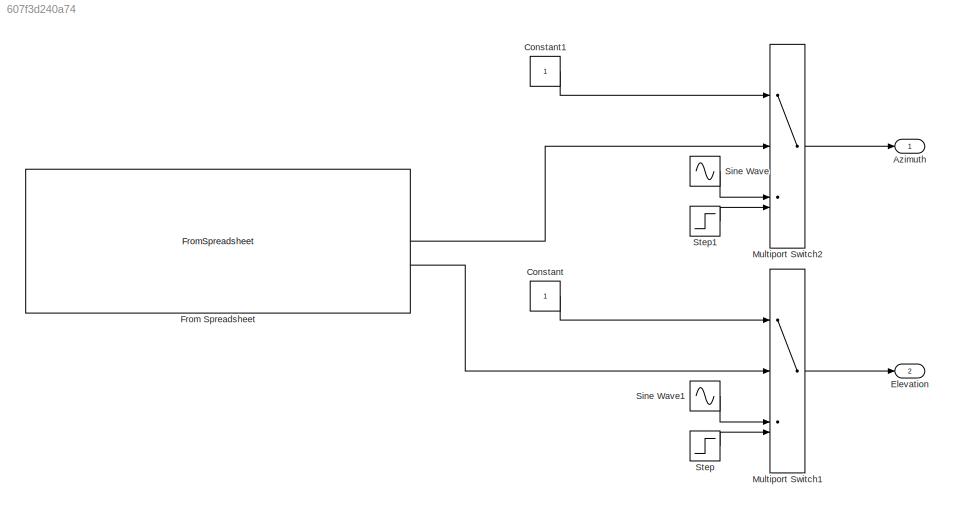
MODEL slx_607f3d240a74
KIND model
CONFIG AbsTol = auto
CONFIG EnableMultiTasking = off
CONFIG FixedStep = 0.001
CONFIG MaxStep = auto
CONFIG MinStep = auto
CONFIG RelTol = 1e-3
CONFIG SampleTimeConstraint = Unconstrained
CONFIG SolverName = ode1be
CONFIG StartTime = 0.0
CONFIG StopTime = 10.0
BLOCK [Outport] Azimuth
  NameLocation = right
BLOCK [Constant] Constant
BLOCK [Constant] Constant1
BLOCK [Outport] Elevation
  NameLocation = right
  Port = 2
BLOCK [FromSpreadsheet] From Spreadsheet
  FileName = .\data\DemoSatelliteData.xlsx
  SheetName = International_Space_Station
BLOCK [MultiPortSwitch] Multiport Switch1
  InputSameDT = off
  SaturateOnIntegerOverflow = off
BLOCK [MultiPortSwitch] Multiport Switch2
  InputSameDT = off
  SaturateOnIntegerOverflow = off
BLOCK [Sin] Sine Wave
  Amplitude = 6
  Frequency = 0.5
  Phase = pi/2
  SampleTime = 0
BLOCK [Sin] Sine Wave1
  Amplitude = 6
  SampleTime = 0
BLOCK [Step] Step
  SampleTime = 0
BLOCK [Step] Step1
  SampleTime = 0
LINE Constant1:1 -> Multiport Switch2:1
LINE Constant:1 -> Multiport Switch1:1
LINE From Spreadsheet:1 -> Multiport Switch2:2
LINE From Spreadsheet:2 -> Multiport Switch1:2
LINE Multiport Switch1:1 -> Elevation:1
LINE Multiport Switch2:1 -> Azimuth:1
LINE Sine Wave1:1 -> Multiport Switch1:3
LINE Sine Wave:1 -> Multiport Switch2:3
LINE Step1:1 -> Multiport Switch2:4
LINE Step:1 -> Multiport Switch1:4
